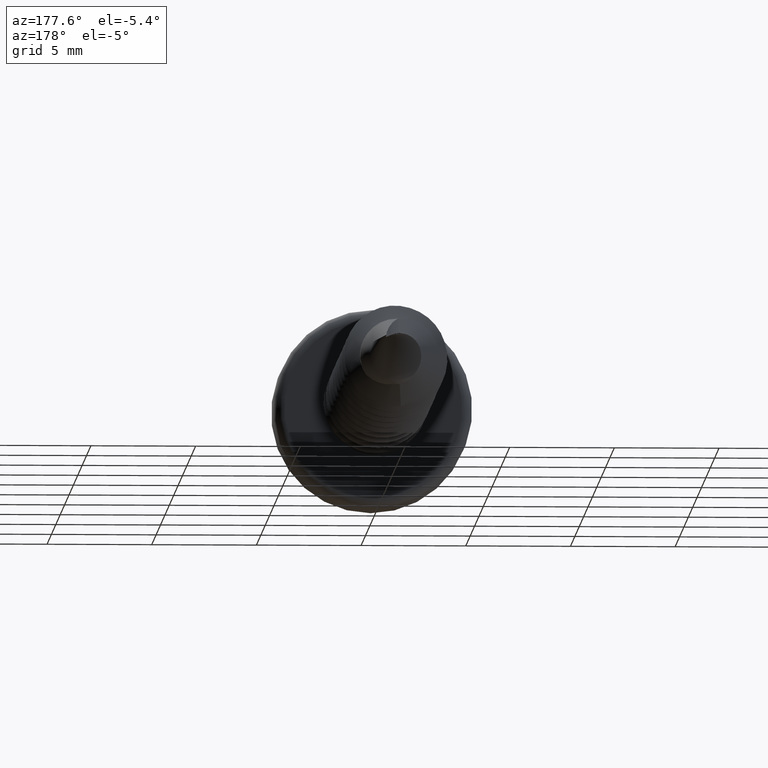
[diagram: clean part render]
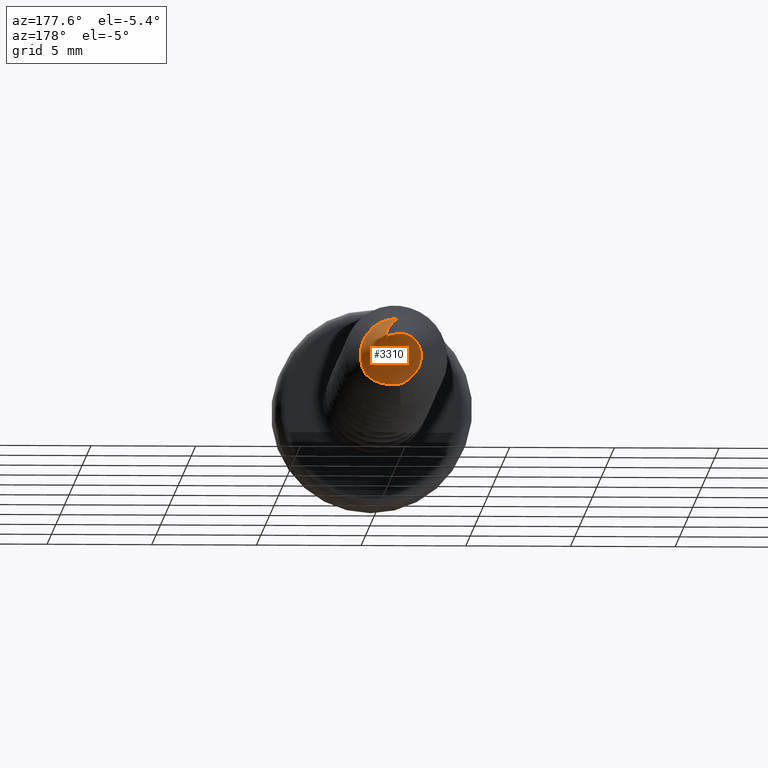
[diagram: same view with one face highlighted and labeled with its STEP entity id]
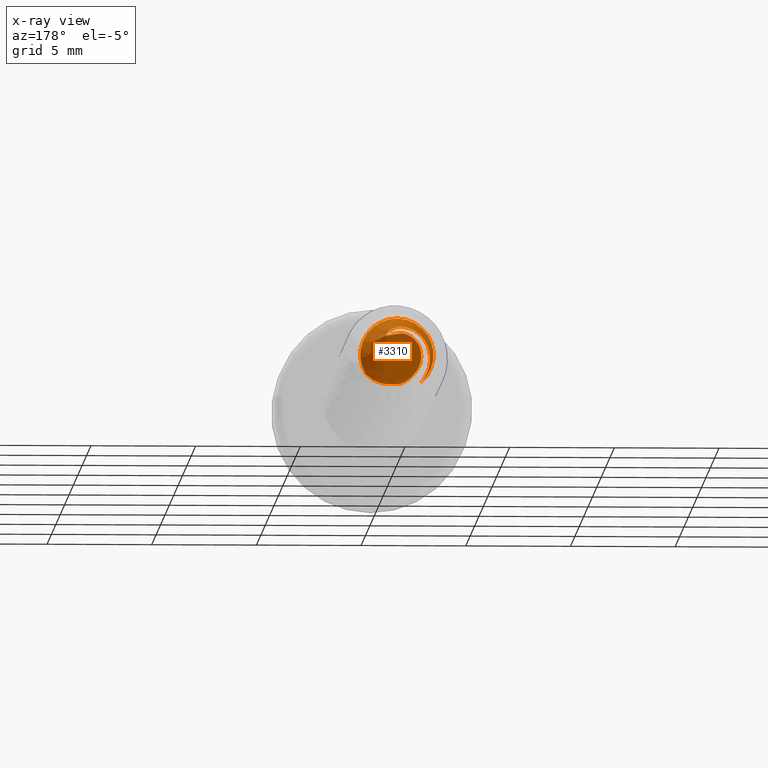
[diagram: x-ray of the same camera — body ghosted, the highlighted face saturated]
A machine part, auxiliary view. The second image highlights one B-rep face of the part: STEP entity #3310.
The next image is the same camera in x-ray: the body ghosted, the highlighted face saturated — about 0% of this face is hidden behind the body in this view.
In plain terms, the highlighted conical surface has half-angle 30 deg.
Its self-contained STEP definition (entity closure, byte-faithful):
#12 = EDGE_CURVE ( 'NONE', #167, #2429, #3433, .T. ) ;
#32 = CARTESIAN_POINT ( 'NONE',  ( 1.396241409223066832, 30.80944601797683191, -1.022335054697645962 ) ) ;
#85 = CARTESIAN_POINT ( 'NONE',  ( 0.3639949380705082560, 32.24004333412461420, 0.8255318521810115495 ) ) ;
#131 = CARTESIAN_POINT ( 'NONE',  ( 0.000000000000000000, 31.58552904187783028, 1.278525403784421144 ) ) ;
#167 = VERTEX_POINT ( 'NONE', #917 ) ;
#172 = EDGE_LOOP ( 'NONE', ( #3481, #2685, #1782, #2179, #1572, #1375, #2033, #2646 ) ) ;
#181 = DIRECTION ( 'NONE',  ( 0.000000000000000000, 0.000000000000000000, -1.000000000000000000 ) ) ;
#193 = CARTESIAN_POINT ( 'NONE',  ( 0.2696259909007800992, 31.73983299237786326, 1.160522282624691925 ) ) ;
#213 = EDGE_CURVE ( 'NONE', #3361, #167, #1209, .T. ) ;
#292 = CARTESIAN_POINT ( 'NONE',  ( -0.7719652574579886073, 31.60744961406056319, -1.003242431223988484 ) ) ;
#334 = CARTESIAN_POINT ( 'NONE',  ( -0.2262075949405988884, 32.18089244603743282, 0.9347921821272321408 ) ) ;
#407 = CARTESIAN_POINT ( 'NONE',  ( 0.000000000000000000, 32.22894191624430960, 0.9070508075688724636 ) ) ;
#423 = CARTESIAN_POINT ( 'NONE',  ( -1.575180826306204596, 31.01612452448195612, -0.3530285180123484690 ) ) ;
#434 = CARTESIAN_POINT ( 'NONE',  ( 0.4841955994409903319, 32.23110162816815460, 0.7659948895033362737 ) ) ;
#450 = CARTESIAN_POINT ( 'NONE',  ( 0.5426754406499130212, 32.20893146650247729, 0.7412638280374199695 ) ) ;
#453 = CARTESIAN_POINT ( 'NONE',  ( -0.3064008189723721465, 31.52280735995350369, 1.314737783727462084 ) ) ;
#497 = CARTESIAN_POINT ( 'NONE',  ( 0.5474674149053837535, 32.03067428643991121, 0.8642978485220332852 ) ) ;
#597 = CARTESIAN_POINT ( 'NONE',  ( -0.8341336116280866353, 32.03046608333626466, 0.6312075623731813190 ) ) ;
#654 = CARTESIAN_POINT ( 'NONE',  ( -0.9775086808971675811, 31.97815556129962644, 0.4474467012992903725 ) ) ;
#740 = CARTESIAN_POINT ( 'NONE',  ( 0.5751044139651949605, 32.15476707891873787, 0.7559885589351910129 ) ) ;
#774 = CARTESIAN_POINT ( 'NONE',  ( -1.121364729867467824, 31.32592927891957046, 0.8977695992327429098 ) ) ;
#787 = CARTESIAN_POINT ( 'NONE',  ( -1.006647982915215733, 31.35920124677549836, 0.9977865009957362918 ) ) ;
#801 = CARTESIAN_POINT ( 'NONE',  ( -1.318259919114949552, 31.25793537352156903, 0.6628188091633995249 ) ) ;
#828 = CARTESIAN_POINT ( 'NONE',  ( 0.000000000000000000, 30.76891108675441799, 0.000000000000000000 ) ) ;
#850 = B_SPLINE_CURVE_WITH_KNOTS ( 'NONE', 3,
 ( #740, #1434, #4017, #2663, #450, #1725, #434, #1056, #85, #2711, #1419, #407 ),
 .UNSPECIFIED., .F., .F.,
 ( 4, 2, 2, 2, 2, 4 ),
 ( 0.000000000000000000, 4.021630510239865004E-05, 8.043261020479730008E-05, 0.0001608652204095853573, 0.0003217304408191637216, 0.0006434608816383202874 ),
 .UNSPECIFIED. ) ;
#860 = CARTESIAN_POINT ( 'NONE',  ( 0.4339348453976213937, 31.87433757435571025, 1.025649661202196805 ) ) ;
#872 = CARTESIAN_POINT ( 'NONE',  ( 0.000000000000000000, 31.58552904187783028, 1.278525403784421144 ) ) ;
#914 = CARTESIAN_POINT ( 'NONE',  ( -1.144825758539952387, 31.82114568088086060, -0.2076835784284497277 ) ) ;
#917 = CARTESIAN_POINT ( 'NONE',  ( -0.7719652574579886073, 31.60744961406056319, -1.003242431223988484 ) ) ;
#920 = CARTESIAN_POINT ( 'NONE',  ( 0.2190600715610325766, 31.28287715519978462, -1.436642409216148941 ) ) ;
#928 = CARTESIAN_POINT ( 'NONE',  ( -1.027394744220597067, 31.71410914178695606, -0.6380304059441181952 ) ) ;
#929 = B_SPLINE_CURVE_WITH_KNOTS ( 'NONE', 3,
 ( #3233, #32, #3559, #1942, #1323, #2933, #3599, #3586, #1967, #2297 ),
 .UNSPECIFIED., .F., .F.,
 ( 4, 2, 2, 2, 4 ),
 ( 0.000000000000000000, 0.0003715921454350797938, 0.0007431842908701595876, 0.001114776436305239381, 0.001486368581740318742 ),
 .UNSPECIFIED. ) ;
#972 = CARTESIAN_POINT ( 'NONE',  ( -0.7719652574579886073, 31.60744961406056319, -1.003242431223988484 ) ) ;
#1056 = CARTESIAN_POINT ( 'NONE',  ( 0.4125317341062373910, 32.24037776815600154, 0.8021696407759261183 ) ) ;
#1059 = CARTESIAN_POINT ( 'NONE',  ( -1.472575620992408352, 30.91095928586828734, -0.7975517303948947978 ) ) ;
#1087 = CARTESIAN_POINT ( 'NONE',  ( -0.1109964166129069063, 31.28852632902509612, -1.445745411716424345 ) ) ;
#1104 = CARTESIAN_POINT ( 'NONE',  ( -1.520952867009894627, 30.94637643703325836, -0.6508413055959418880 ) ) ;
#1144 = CARTESIAN_POINT ( 'NONE',  ( 0.07301668972269731439, 31.62183765626443943, 1.257562615494416169 ) ) ;
#1209 = B_SPLINE_CURVE_WITH_KNOTS ( 'NONE', 3,
 ( #3189, #2571, #3826, #1856, #4143, #292 ),
 .UNSPECIFIED., .F., .F.,
 ( 4, 2, 4 ),
 ( 0.000000000000000000, 0.0004307664480436258704, 0.0008615328960872517408 ),
 .UNSPECIFIED. ) ;
#1242 = CARTESIAN_POINT ( 'NONE',  ( -0.4549550407793461759, 32.13051989306662648, 0.8789324745329336608 ) ) ;
#1243 = B_SPLINE_CURVE_WITH_KNOTS ( 'NONE', 3,
 ( #3541, #3528, #1248, #4134 ),
 .UNSPECIFIED., .F., .F.,
 ( 4, 4 ),
 ( 4.827809075382259573E-07, 0.0003307039486536562890 ),
 .UNSPECIFIED. ) ;
#1248 = CARTESIAN_POINT ( 'NONE',  ( -0.0006339516150788296681, 31.28578772135134756, -1.455804226392961143 ) ) ;
#1323 = CARTESIAN_POINT ( 'NONE',  ( 1.009038412814447616, 30.97245333367694897, -1.288346015274691725 ) ) ;
#1360 = EDGE_CURVE ( 'NONE', #3092, #1593, #1886, .T. ) ;
#1375 = ORIENTED_EDGE ( 'NONE', *, *, #213, .T. ) ;
#1419 = CARTESIAN_POINT ( 'NONE',  ( 0.1081128186108265277, 32.23207022229784968, 0.9052446792267333509 ) ) ;
#1434 = CARTESIAN_POINT ( 'NONE',  ( 0.5735262692967700859, 32.16626262994309116, 0.7488499742278754701 ) ) ;
#1435 = CARTESIAN_POINT ( 'NONE',  ( -1.396400602972823313, 31.22455966062800670, 0.5329533756090336638 ) ) ;
#1449 = CARTESIAN_POINT ( 'NONE',  ( -1.156635621208638831, 30.76891108675441799, -1.313276071415041324 ) ) ;
#1460 = CARTESIAN_POINT ( 'NONE',  ( -1.550556115289980941, 31.12114994270719492, 0.1028078656361215149 ) ) ;
#1552 = EDGE_CURVE ( 'NONE', #1626, #3361, #1243, .T. ) ;
#1572 = ORIENTED_EDGE ( 'NONE', *, *, #1552, .T. ) ;
#1593 = VERTEX_POINT ( 'NONE', #3797 ) ;
#1626 = VERTEX_POINT ( 'NONE', #920 ) ;
#1686 = DIRECTION ( 'NONE',  ( 0.000000000000000000, 0.000000000000000000, -1.000000000000000000 ) ) ;
#1725 = CARTESIAN_POINT ( 'NONE',  ( 0.5082268384083459267, 32.22681804136935568, 0.7531369870254103205 ) ) ;
#1782 = ORIENTED_EDGE ( 'NONE', *, *, #3897, .F. ) ;
#1795 = CARTESIAN_POINT ( 'NONE',  ( 0.5702640088443153843, 32.08780101202205515, 0.8082494878006959427 ) ) ;
#1801 = B_SPLINE_CURVE_WITH_KNOTS ( 'NONE', 3,
 ( #131, #453, #2726, #787, #774, #801, #1435, #2404, #1460, #3719, #423, #1104, #1059, #3336, #3434, #3141 ),
 .UNSPECIFIED., .F., .F.,
 ( 4, 2, 2, 2, 2, 2, 2, 4 ),
 ( 0.000000000000000000, 0.0009328959283529787922, 0.001399343892529468242, 0.001865791856705957584, 0.002332239820882446926, 0.002798687785058936485, 0.003265135749235425610, 0.003731583713411914301 ),
 .UNSPECIFIED. ) ;
#1818 = EDGE_CURVE ( 'NONE', #3874, #1626, #929, .T. ) ;
#1856 = CARTESIAN_POINT ( 'NONE',  ( -0.5850055610302848930, 31.49960912800722213, -1.199480797417593614 ) ) ;
#1886 = B_SPLINE_CURVE_WITH_KNOTS ( 'NONE', 3,
 ( #872, #1144, #4115, #193, #2482, #860, #2110, #497, #1795, #2455 ),
 .UNSPECIFIED., .F., .F.,
 ( 4, 2, 2, 2, 4 ),
 ( 0.000000000000000000, 0.0002489847055146676832, 0.0004979694110293353664, 0.0007469541165440030496, 0.0009959388220586707328 ),
 .UNSPECIFIED. ) ;
#1942 = CARTESIAN_POINT ( 'NONE',  ( 1.114007671626778828, 30.93065397893823842, -1.231476211681812982 ) ) ;
#1967 = CARTESIAN_POINT ( 'NONE',  ( 0.3348073235100148537, 31.23523799187396577, -1.446830900120790186 ) ) ;
#2033 = ORIENTED_EDGE ( 'NONE', *, *, #12, .T. ) ;
#2048 = CARTESIAN_POINT ( 'NONE',  ( 0.000000000000000000, 30.76891108675441799, 0.000000000000000000 ) ) ;
#2091 = CARTESIAN_POINT ( 'NONE',  ( 0.000000000000000000, 32.22894191624430960, 0.9070508075688724636 ) ) ;
#2110 = CARTESIAN_POINT ( 'NONE',  ( 0.4786781640376175373, 31.92258590160045628, 0.9741604737848418294 ) ) ;
#2114 = DIRECTION ( 'NONE',  ( -0.000000000000000000, -1.000000000000000000, -0.000000000000000000 ) ) ;
#2179 = ORIENTED_EDGE ( 'NONE', *, *, #1818, .T. ) ;
#2297 = CARTESIAN_POINT ( 'NONE',  ( 0.2190600715610325766, 31.28287715519978462, -1.436642409216148941 ) ) ;
#2347 = CARTESIAN_POINT ( 'NONE',  ( 0.000000000000000000, 31.58552904187783028, 1.278525403784421144 ) ) ;
#2404 = CARTESIAN_POINT ( 'NONE',  ( -1.513725628080748065, 31.15555244509797816, 0.2503570325922410689 ) ) ;
#2429 = VERTEX_POINT ( 'NONE', #2091 ) ;
#2455 = CARTESIAN_POINT ( 'NONE',  ( 0.5751044139651949605, 32.15476707891873787, 0.7559885589351910129 ) ) ;
#2482 = CARTESIAN_POINT ( 'NONE',  ( 0.3295708325721818932, 31.78285599120577487, 1.118870473044500491 ) ) ;
#2569 = EDGE_CURVE ( 'NONE', #3092, #3920, #1801, .T. ) ;
#2571 = CARTESIAN_POINT ( 'NONE',  ( -0.2407967938574872013, 31.34092352563843420, -1.405439488659237401 ) ) ;
#2581 = CARTESIAN_POINT ( 'NONE',  ( -0.8508853813034488178, 31.63470496577765090, -0.9226605380166561510 ) ) ;
#2646 = ORIENTED_EDGE ( 'NONE', *, *, #3237, .F. ) ;
#2663 = CARTESIAN_POINT ( 'NONE',  ( 0.5540042492372407867, 32.20024533620856033, 0.7390372144861631076 ) ) ;
#2685 = ORIENTED_EDGE ( 'NONE', *, *, #2569, .T. ) ;
#2711 = CARTESIAN_POINT ( 'NONE',  ( 0.2146113458038514388, 32.23774330079428552, 0.8825256472593103751 ) ) ;
#2726 = CARTESIAN_POINT ( 'NONE',  ( -0.6165261699129827022, 31.45913077490926923, 1.240480782649034941 ) ) ;
#2863 = FACE_OUTER_BOUND ( 'NONE', #172, .T. ) ;
#2888 = CARTESIAN_POINT ( 'NONE',  ( 0.000000000000000000, 32.22894191624430960, 0.9070508075688724636 ) ) ;
#2927 = CARTESIAN_POINT ( 'NONE',  ( -0.9180229548530515205, 31.66092180143642665, -0.8335235866220483958 ) ) ;
#2933 = CARTESIAN_POINT ( 'NONE',  ( 0.7929577823575297835, 31.05681980445929113, -1.375700212255072108 ) ) ;
#3066 = CIRCLE ( 'NONE', #4045, 1.749999999999999778 ) ;
#3078 = CARTESIAN_POINT ( 'NONE',  ( 1.478246241109069548, 30.76891108675442155, -0.9366365627322685850 ) ) ;
#3092 = VERTEX_POINT ( 'NONE', #2347 ) ;
#3141 = CARTESIAN_POINT ( 'NONE',  ( -1.156635621208638831, 30.76891108675441799, -1.313276071415041324 ) ) ;
#3189 = CARTESIAN_POINT ( 'NONE',  ( -0.1109964166129069063, 31.28852632902509612, -1.445745411716424345 ) ) ;
#3233 = CARTESIAN_POINT ( 'NONE',  ( 1.478246241109069548, 30.76891108675442155, -0.9366365627322685850 ) ) ;
#3237 = EDGE_CURVE ( 'NONE', #1593, #2429, #850, .T. ) ;
#3310 = ADVANCED_FACE ( 'NONE', ( #2863 ), #3398, .T. ) ;
#3336 = CARTESIAN_POINT ( 'NONE',  ( -1.341022369871149866, 30.84053626423947492, -1.069353314310041547 ) ) ;
#3361 = VERTEX_POINT ( 'NONE', #1087 ) ;
#3398 = CONICAL_SURFACE ( 'NONE', #4095, 1.749999999999999778, 0.5235987755982928205 ) ;
#3433 = B_SPLINE_CURVE_WITH_KNOTS ( 'NONE', 3,
 ( #972, #2581, #2927, #928, #3519, #914, #4184, #654, #597, #1242, #334, #2888 ),
 .UNSPECIFIED., .F., .F.,
 ( 4, 2, 2, 2, 2, 4 ),
 ( 0.000000000000000000, 0.0003436933373370162892, 0.0006873866746740323616, 0.001374773349348059519, 0.002062160024022087219, 0.002749546698696114268 ),
 .UNSPECIFIED. ) ;
#3434 = CARTESIAN_POINT ( 'NONE',  ( -1.256641422265781793, 30.80471596826923886, -1.197652097445014441 ) ) ;
#3481 = ORIENTED_EDGE ( 'NONE', *, *, #1360, .F. ) ;
#3519 = CARTESIAN_POINT ( 'NONE',  ( -1.068623370924414173, 31.74096204656507680, -0.5323289482947534124 ) ) ;
#3528 = CARTESIAN_POINT ( 'NONE',  ( 0.1093826248221419356, 31.28438134721889341, -1.452500450223608519 ) ) ;
#3541 = CARTESIAN_POINT ( 'NONE',  ( 0.2190600715610325766, 31.28287715519978462, -1.436642409216148941 ) ) ;
#3559 = CARTESIAN_POINT ( 'NONE',  ( 1.306946833187211165, 30.84938290851687626, -1.098681757801838854 ) ) ;
#3586 = CARTESIAN_POINT ( 'NONE',  ( 0.4523843473643116009, 31.18878276274746142, -1.442548779136418657 ) ) ;
#3599 = CARTESIAN_POINT ( 'NONE',  ( 0.6815035463170693308, 31.09957269861429907, -1.406805676322649079 ) ) ;
#3719 = CARTESIAN_POINT ( 'NONE',  ( -1.581655113578345873, 31.05110461798996369, -0.1997253685708678117 ) ) ;
#3797 = CARTESIAN_POINT ( 'NONE',  ( 0.5751044139651949605, 32.15476707891873787, 0.7559885589351910129 ) ) ;
#3826 = CARTESIAN_POINT ( 'NONE',  ( -0.3615402605037633110, 31.39341887769399975, -1.347919078162854500 ) ) ;
#3874 = VERTEX_POINT ( 'NONE', #3078 ) ;
#3897 = EDGE_CURVE ( 'NONE', #3874, #3920, #3066, .T. ) ;
#3920 = VERTEX_POINT ( 'NONE', #1449 ) ;
#3959 = DIRECTION ( 'NONE',  ( -0.000000000000000000, -1.000000000000000000, -0.000000000000000000 ) ) ;
#4017 = CARTESIAN_POINT ( 'NONE',  ( 0.5695926798803513380, 32.17842335098318785, 0.7430295012311686209 ) ) ;
#4045 = AXIS2_PLACEMENT_3D ( 'NONE', #828, #2114, #181 ) ;
#4095 = AXIS2_PLACEMENT_3D ( 'NONE', #2048, #3959, #1686 ) ;
#4115 = CARTESIAN_POINT ( 'NONE',  ( 0.1416776564131801142, 31.65957177939177214, 1.229560575112660148 ) ) ;
#4134 = CARTESIAN_POINT ( 'NONE',  ( -0.1109964166129069063, 31.28852632902509612, -1.445745411716424345 ) ) ;
#4143 = CARTESIAN_POINT ( 'NONE',  ( -0.6869537196298609594, 31.55297214389941018, -1.108342472215211982 ) ) ;
#4184 = CARTESIAN_POINT ( 'NONE',  ( -1.133880650544414559, 31.87355444812049043, 0.02717003063810754376 ) ) ;